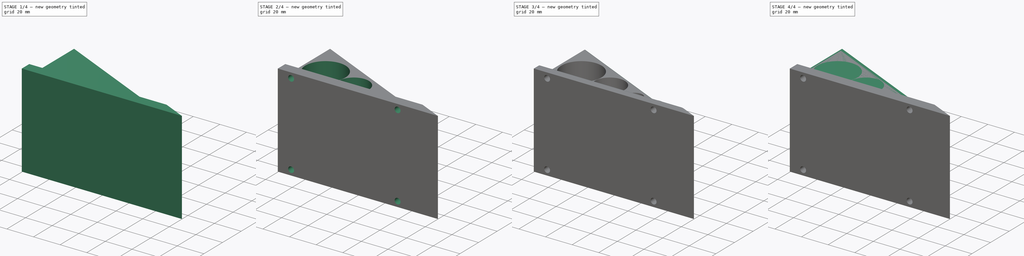
[diagram: build sequence overview — one tinted view per stage of 4, left to right]
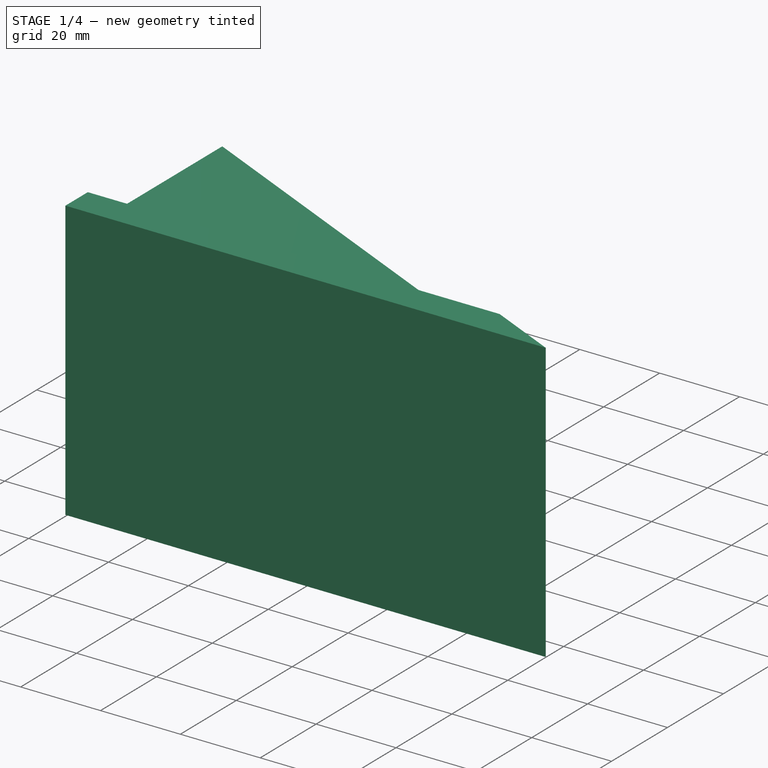
[diagram: stage 1 of 4 — iso view after this stage's code; geometry added in this stage tinted green]
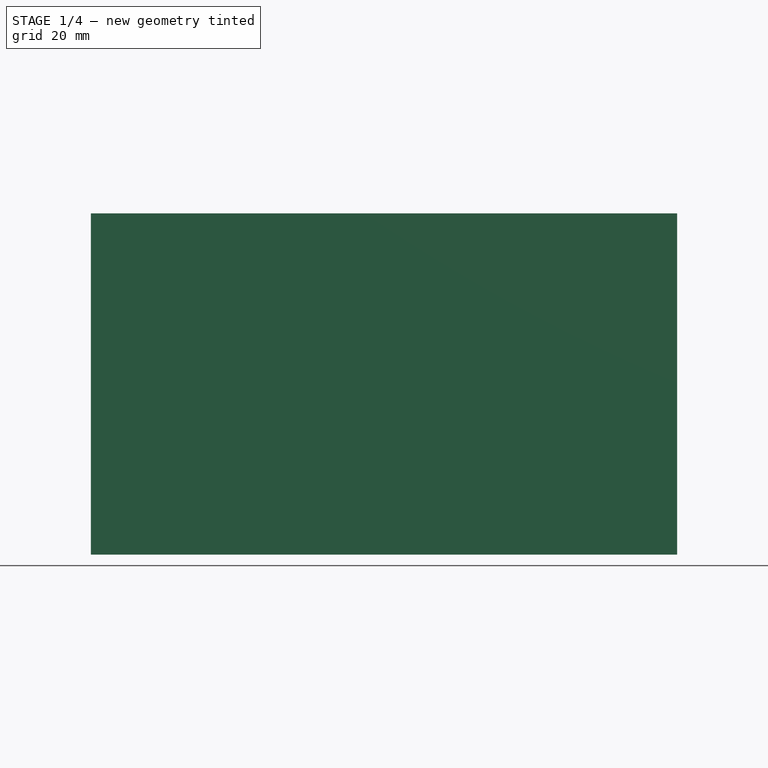
[diagram: stage 1 of 4 — front view after this stage's code; geometry added in this stage tinted green]
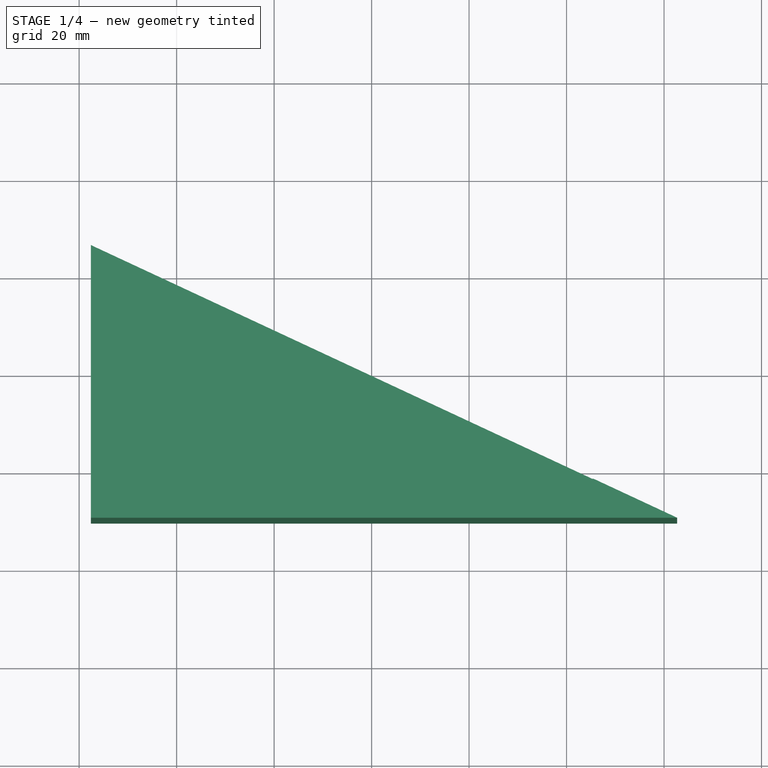
[diagram: stage 1 of 4 — top view after this stage's code; geometry added in this stage tinted green]
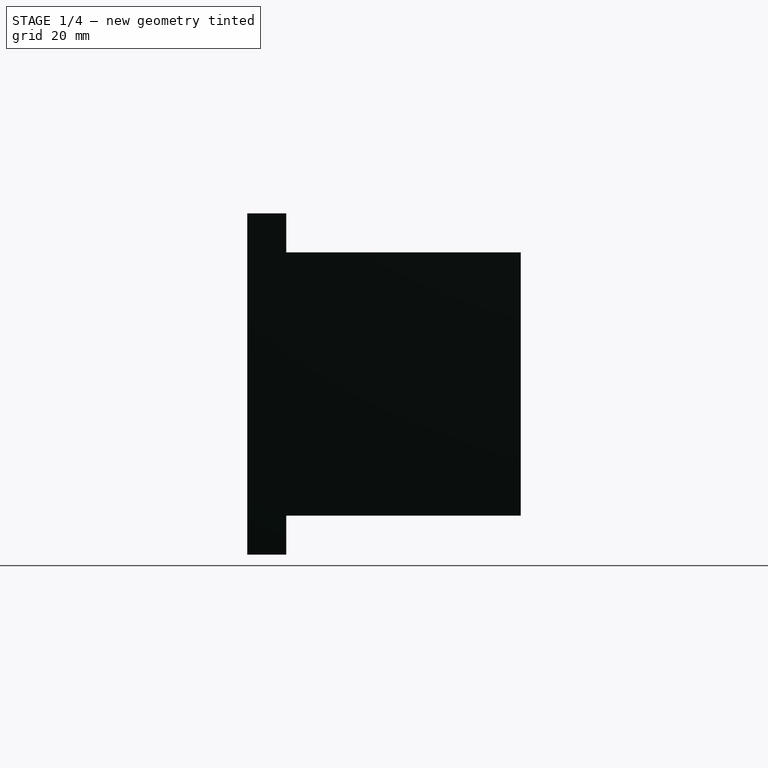
[diagram: stage 1 of 4 — right view after this stage's code; geometry added in this stage tinted green]
FCSTD DOCUMENT  (FreeCAD 0.16R6705 (Git))
Label: pippo
License: All rights reserved
LicenseURL: http://it.wikipedia.org/wiki/<copyright redacted>
objects: Sketcher::SketchObject×6, PartDesign::Pocket×5, PartDesign::Fillet×5, App::MeasureDistance×2, PartDesign::Pad×1
note: 23 computed .brp shape members not serialized (recipe doc carries the construction recipe); baked Part::Feature solids carry a one-line shape summary decoded from their .brp

FEATURE [Sketcher::SketchObject] Sketch
  sketch-geometry (3):
    g0: LineSegment StartX=-37.6085 StartY=25.834 StartZ=0 EndX=-37.6085 EndY=-30.2642 EndZ=0
    g1: LineSegment StartX=-37.6085 StartY=-30.2642 StartZ=0 EndX=82.6946 EndY=-30.2642 EndZ=0
    g2: LineSegment StartX=82.6946 StartY=-30.2642 StartZ=0 EndX=-37.6085 EndY=25.834 EndZ=0
  constraints (6):
    c: Coincident(g0,g1)
    c: Coincident(g1,g2)
    c: Coincident(g2,g0)
    c: Perpendicular(g1,g0)
    c: Parallel(g1,g-1)
    c: Angle(g2,g1) = 0.436332
FEATURE [PartDesign::Pad] Pad
  Length = 70
  Length2 = 100
  Midplane = true
  Sketch = -> Sketch
  Type = 0
FEATURE [Sketcher::SketchObject] Sketch001
  ExternalGeometry = -> [Pad]
  Placement = pos=(0,0,35) rot=(0,0,1;0rad)
  Support = -> Pad [Face5]
  sketch-geometry (3):
    g0: LineSegment StartX=-37.6085 StartY=25.834 StartZ=0 EndX=-37.6085 EndY=-22.2642 EndZ=0
    g1: LineSegment StartX=-37.6085 StartY=-22.2642 StartZ=0 EndX=65.5386 EndY=-22.2642 EndZ=0
    g2: LineSegment StartX=65.5386 StartY=-22.2642 StartZ=0 EndX=-37.6085 EndY=25.834 EndZ=0
  constraints (9):
    c: Coincident(g0,g1)
    c: Coincident(g1,g2)
    c: Coincident(g2,g0)
    c: Parallel(g1,g-3)
    c: Parallel(g0,g-4)
    c: PointOnObject(g1,g-5)
    c: PointOnObject(g0,g-4)
    c: DistanceY(g-4,g0) = 8
    c: PointOnObject(g0,g-5)
FEATURE [PartDesign::Pocket] Pocket
  Length = 8
  Sketch = -> Sketch001
  Type = 0
FEATURE [Sketcher::SketchObject] Sketch002
  ExternalGeometry = -> [Pocket]
  Placement = pos=(0,0,-35) rot=(1,0,0;3.14159rad)
  Support = -> Pocket [Face2]
  sketch-geometry (3):
    g0: LineSegment StartX=65.5386 StartY=22.2642 StartZ=0 EndX=-37.6085 EndY=22.2642 EndZ=0
    g1: LineSegment StartX=65.5386 StartY=22.2642 StartZ=0 EndX=-37.6085 EndY=-25.834 EndZ=0
    g2: LineSegment StartX=-37.6085 StartY=22.2642 StartZ=0 EndX=-37.6085 EndY=-25.834 EndZ=0
  constraints (6):
    c: Coincident(g2,g-5)
    c: Coincident(g1,g-4)
    c: Coincident(g-5,g0)
    c: Coincident(g-5,g1)
    c: Coincident(g2,g0)
    c: Coincident(g1,g2)
FEATURE [PartDesign::Pocket] Pocket001
  Length = 8
  Sketch = -> Sketch002
  Type = 0
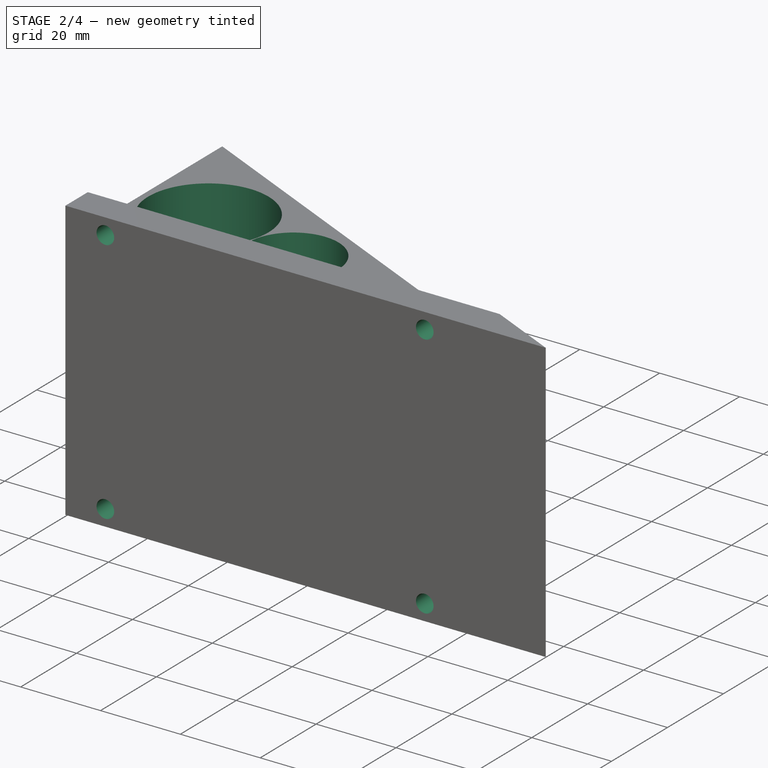
[diagram: stage 2 of 4 — iso view after this stage's code; geometry added in this stage tinted green]
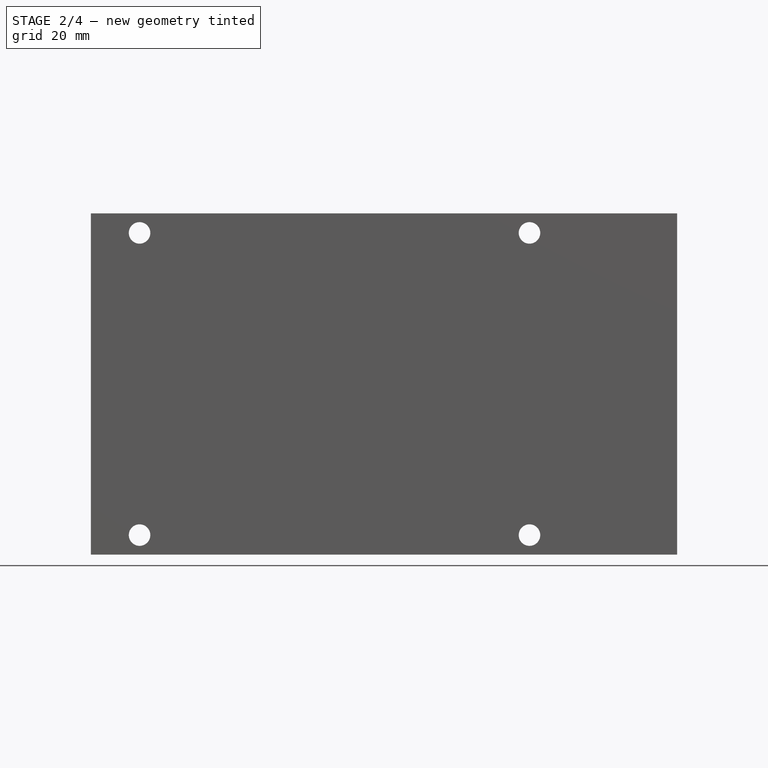
[diagram: stage 2 of 4 — front view after this stage's code; geometry added in this stage tinted green]
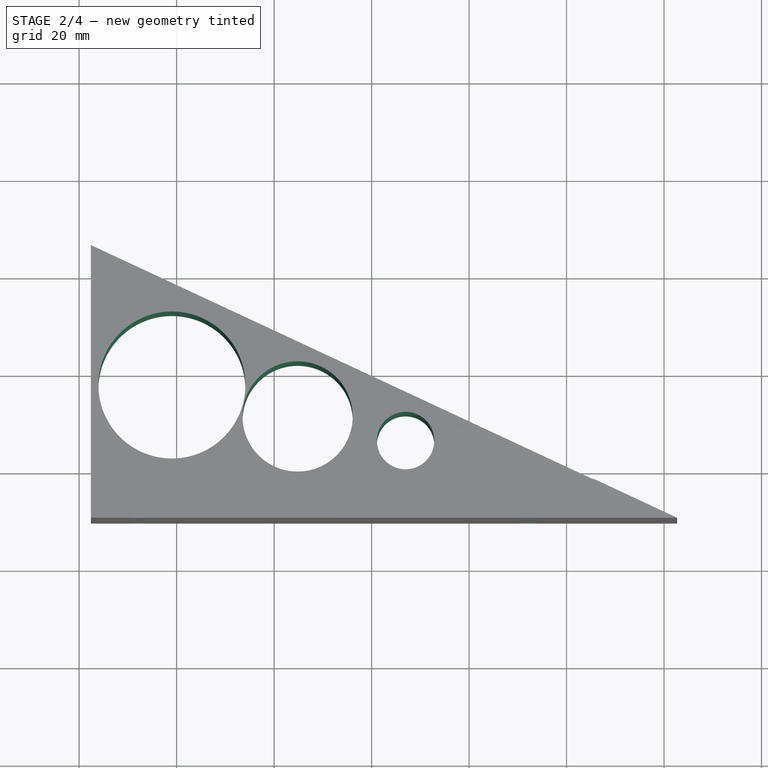
[diagram: stage 2 of 4 — top view after this stage's code; geometry added in this stage tinted green]
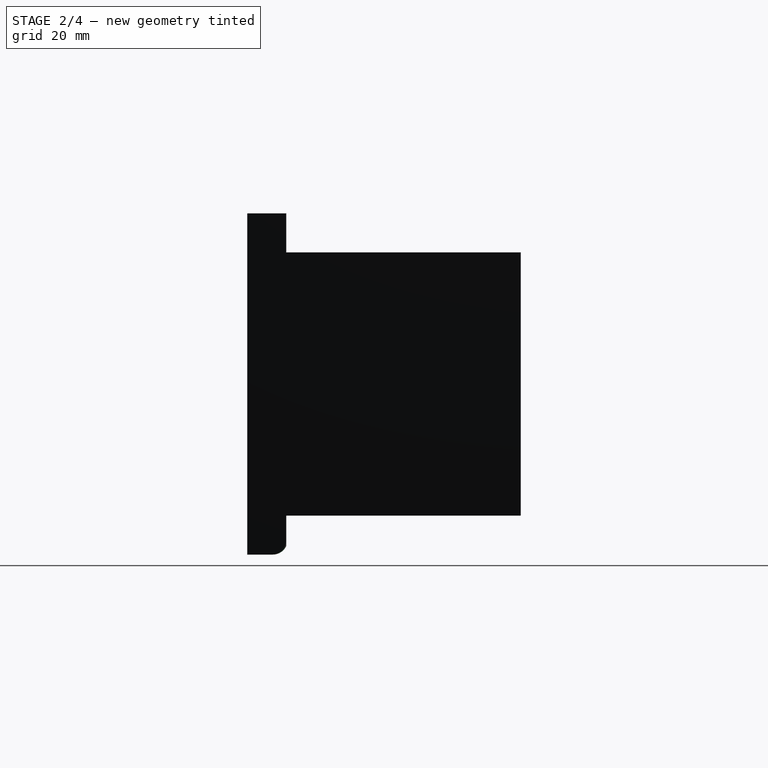
[diagram: stage 2 of 4 — right view after this stage's code; geometry added in this stage tinted green]
FEATURE [Sketcher::SketchObject] Sketch003
  ExternalGeometry = -> [Pocket001]
  Placement = pos=(0,-22.2642,0) rot=(0,0.707107,0.707107;3.14159rad)
  Support = -> Pocket001 [Face5]
  sketch-geometry (8):
    g0: Circle CenterX=-52.3915 CenterY=31 CenterZ=0 NormalX=0 NormalY=0 NormalZ=1 Radius=2.20775
    g1: Circle CenterX=27.6085 CenterY=31 CenterZ=0 NormalX=0 NormalY=0 NormalZ=1 Radius=2.20775
    g2: Circle CenterX=-52.3915 CenterY=-31 CenterZ=0 NormalX=0 NormalY=0 NormalZ=1 Radius=2.20775
    g3: Circle CenterX=27.6085 CenterY=-31 CenterZ=0 NormalX=0 NormalY=0 NormalZ=1 Radius=2.20775
    g4: LineSegment [constr] StartX=-52.3915 StartY=31 StartZ=0 EndX=27.6085 EndY=31 EndZ=0
    g5: LineSegment [constr] StartX=27.6085 StartY=31 StartZ=0 EndX=27.6085 EndY=-31 EndZ=0
    g6: LineSegment [constr] StartX=27.6085 StartY=-31 StartZ=0 EndX=-52.3915 EndY=-31 EndZ=0
    g7: LineSegment [constr] StartX=-52.3915 StartY=-31 StartZ=0 EndX=-52.3915 EndY=31 EndZ=0
  constraints (21):
    c: Equal(g0,g1)
    c: Equal(g1,g3)
    c: Equal(g3,g2)
    c: DistanceX(g1,g-3) = 10
    c: DistanceX(g3,g-4) = 10
    c: DistanceX(g2,g-4) = 90
    c: DistanceX(g0,g-3) = 90
    c: Coincident(g4,g5)
    c: Coincident(g5,g6)
    c: Coincident(g6,g7)
    c: Coincident(g7,g4)
    c: Horizontal(g4)
    c: Horizontal(g6)
    c: Vertical(g5)
    c: Vertical(g7)
    c: Coincident(g4,g0)
    c: Coincident(g2,g6)
    c: Coincident(g4,g1)
    c: Coincident(g5,g3)
    c: DistanceY(g1,g-3) = 4
    c: DistanceY(g-4,g3) = 4
FEATURE [PartDesign::Pocket] Pocket002
  Length = 5
  Sketch = -> Sketch003
  Type = 1
FEATURE [App::MeasureDistance] Distance001  label="Distance: 29,0761 mm"
  Distance = 29.0761
  P1 = (-33.8137,-19.6292,17)
  P2 = (-33.4099,9.44407,17)
FEATURE [Sketcher::SketchObject] Sketch005
  Placement = pos=(0,0,27) rot=(0,0,1;0rad)
  Support = -> Pocket002 [Face6]
  sketch-geometry (3):
    g0: Circle CenterX=-20.9703 CenterY=-2.89183 CenterZ=0 NormalX=0 NormalY=0 NormalZ=1 Radius=15.0813
    g1: Circle CenterX=4.81649 CenterY=-9.33852 CenterZ=0 NormalX=0 NormalY=0 NormalZ=1 Radius=11.3083
    g2: Circle CenterX=26.9667 CenterY=-14.2975 CenterZ=0 NormalX=0 NormalY=0 NormalZ=1 Radius=5.88617
FEATURE [PartDesign::Pocket] Pocket004
  Length = 5
  Sketch = -> Sketch005
  Type = 1
FEATURE [PartDesign::Fillet] Fillet
  Base = -> Pocket004 [Edge11]
  Radius = 3
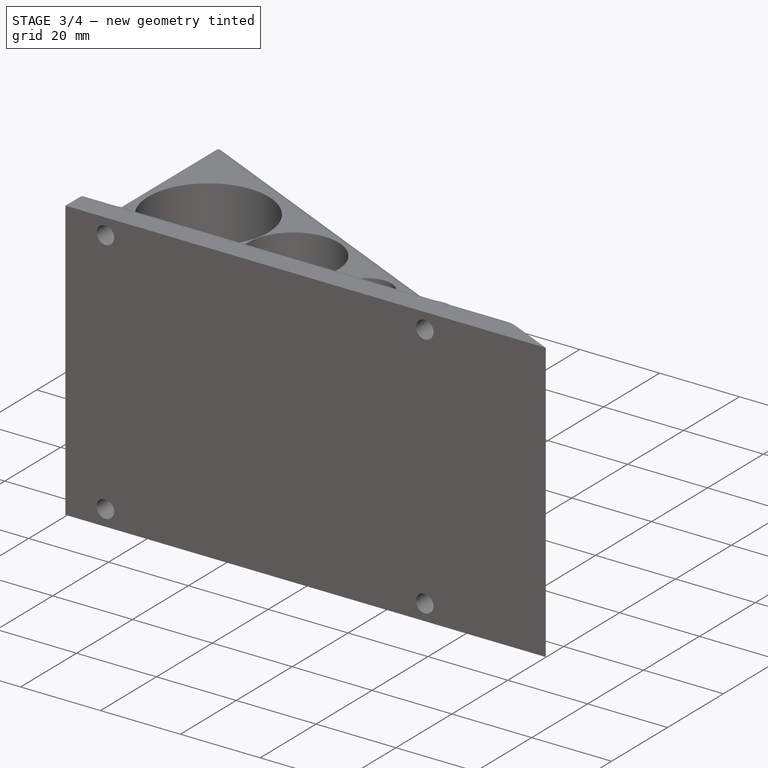
[diagram: stage 3 of 4 — iso view after this stage's code; geometry added in this stage tinted green]
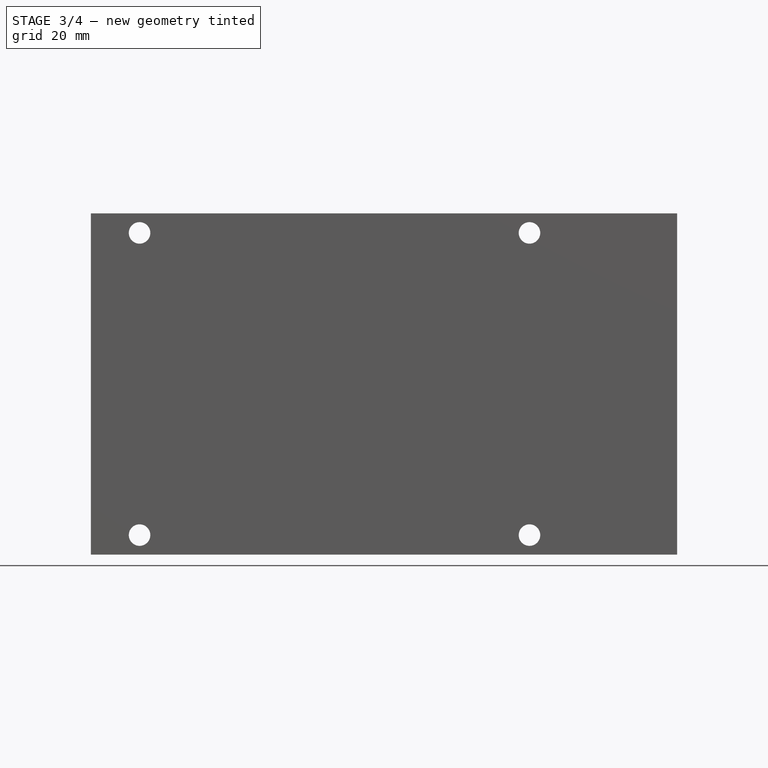
[diagram: stage 3 of 4 — front view after this stage's code; geometry added in this stage tinted green]
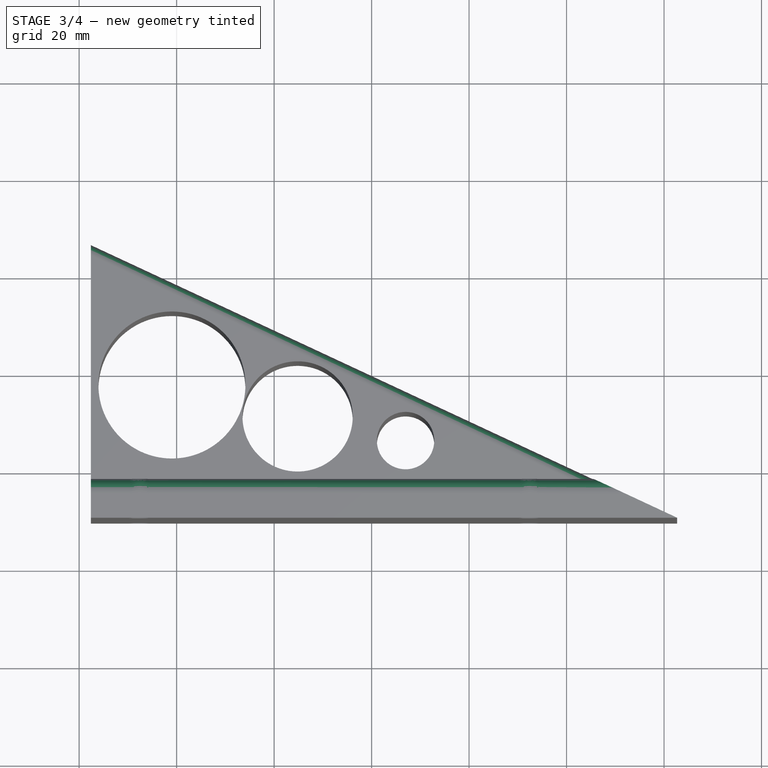
[diagram: stage 3 of 4 — top view after this stage's code; geometry added in this stage tinted green]
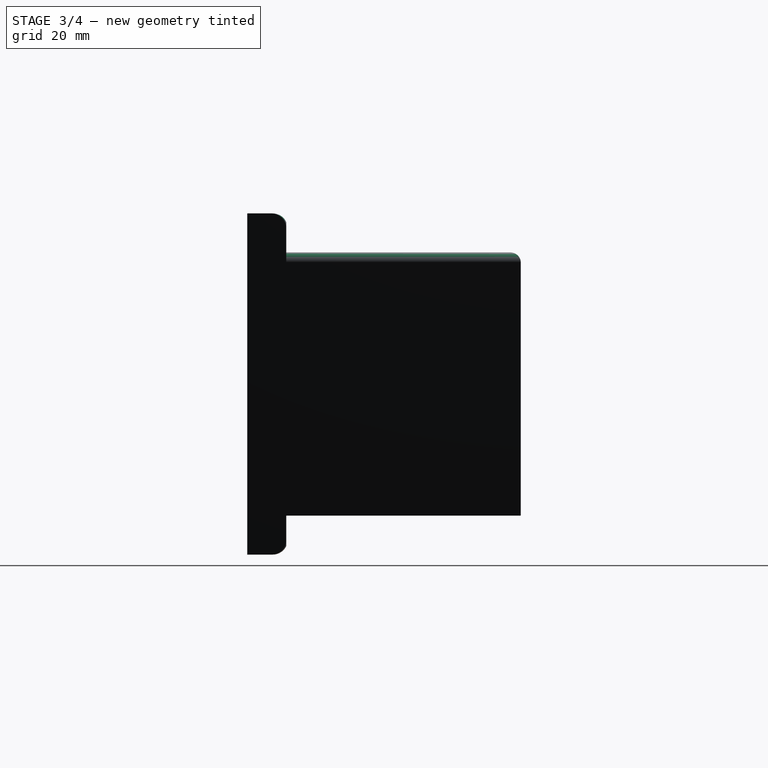
[diagram: stage 3 of 4 — right view after this stage's code; geometry added in this stage tinted green]
FEATURE [PartDesign::Fillet] Fillet001
  Base = -> Fillet [Edge34]
  Radius = 3
FEATURE [PartDesign::Fillet] Fillet002
  Base = -> Fillet001 [Edge40]
  Radius = 2
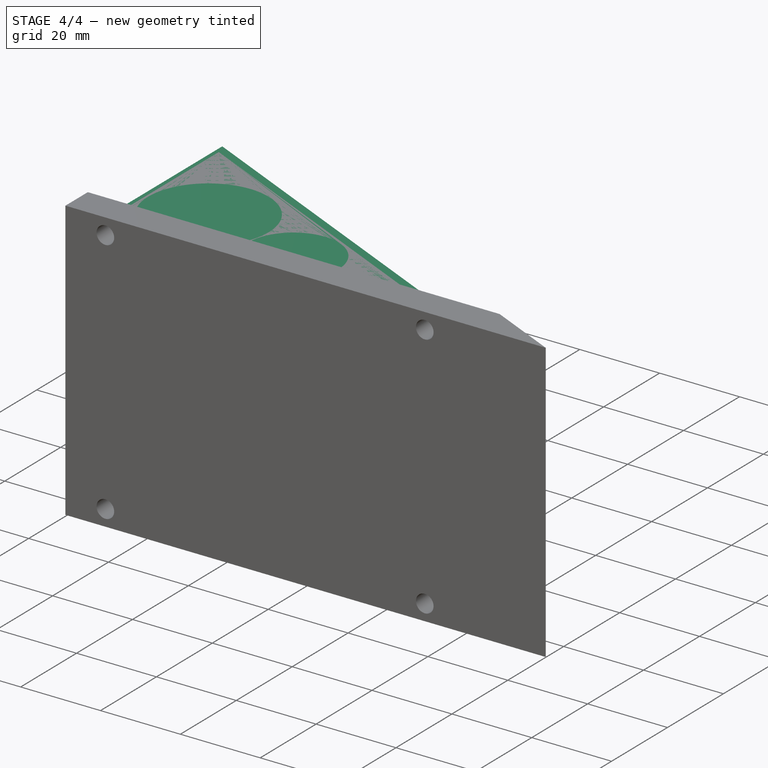
[diagram: stage 4 of 4 — iso view after this stage's code; geometry added in this stage tinted green]
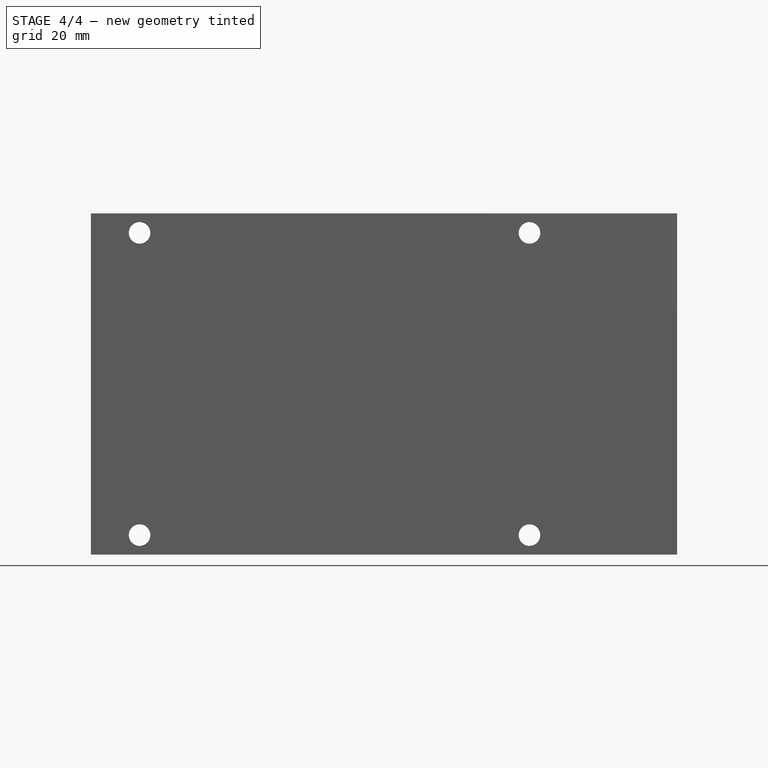
[diagram: stage 4 of 4 — front view after this stage's code; geometry added in this stage tinted green]
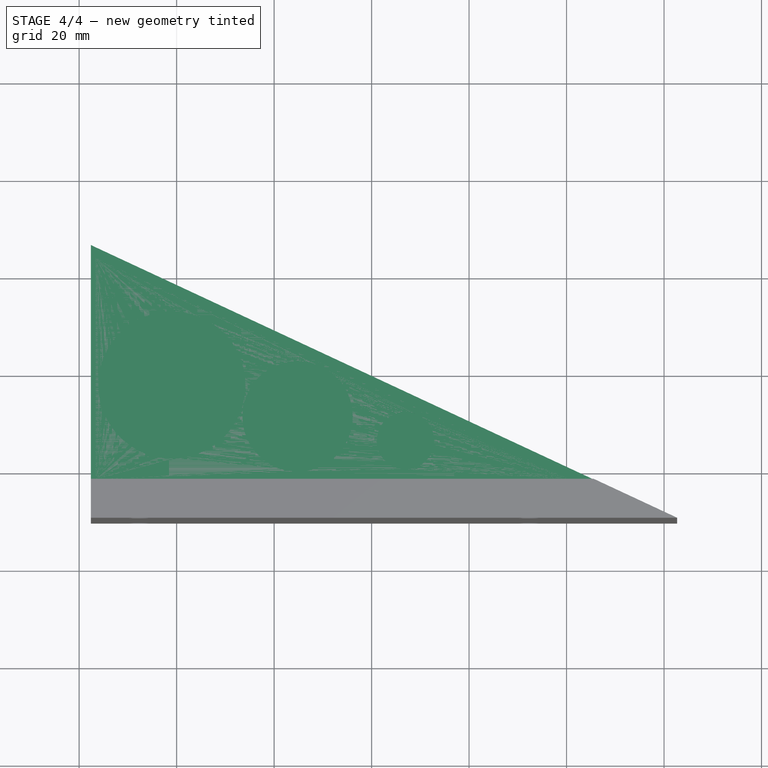
[diagram: stage 4 of 4 — top view after this stage's code; geometry added in this stage tinted green]
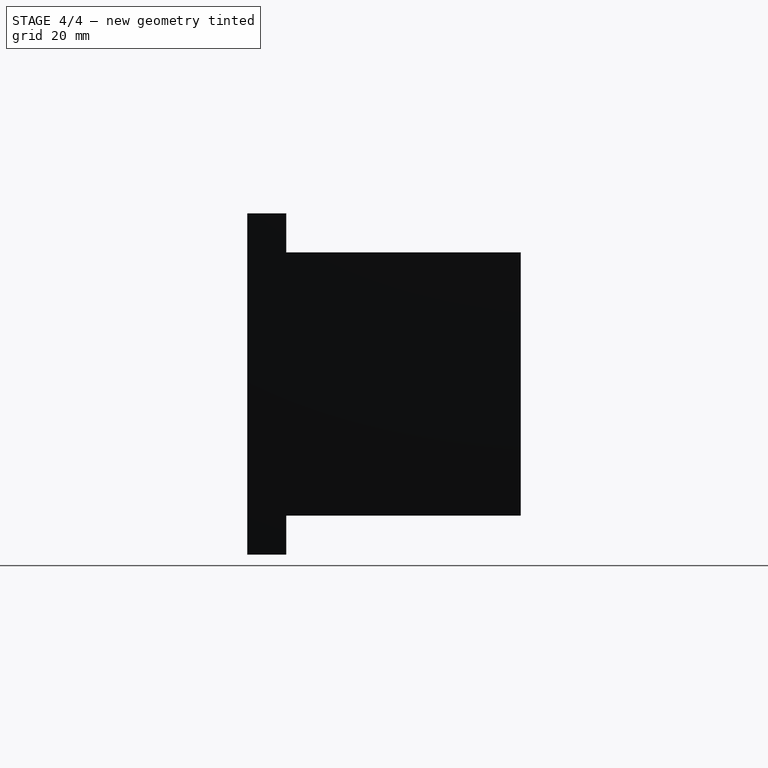
[diagram: stage 4 of 4 — right view after this stage's code; geometry added in this stage tinted green]
FEATURE [App::MeasureDistance] Distance  label="Distance: 34,0007 mm"
  Distance = 34.0007
  P1 = (-35.8327,25.006,17)
  P2 = (-35.6308,24.9118,-17)
FEATURE [Sketcher::SketchObject] Sketch004
  Placement = pos=(0,-30.2642,0) rot=(1,0,0;1.5708rad)
  Support = -> Pocket002 [Face3]
  sketch-geometry (4):
    g0: LineSegment StartX=-29.5739 StartY=13.0424 StartZ=0 EndX=-0.298696 EndY=13.0424 EndZ=0
    g1: LineSegment StartX=-0.298696 StartY=13.0424 StartZ=0 EndX=-0.298696 EndY=-13.0424 EndZ=0
    g2: LineSegment StartX=-0.298696 StartY=-13.0424 StartZ=0 EndX=-29.5739 EndY=-13.0424 EndZ=0
    g3: LineSegment StartX=-29.5739 StartY=-13.0424 StartZ=0 EndX=-29.5739 EndY=13.0424 EndZ=0
  constraints (9):
    c: Coincident(g0,g1)
    c: Coincident(g1,g2)
    c: Coincident(g2,g3)
    c: Coincident(g3,g0)
    c: Horizontal(g0)
    c: Horizontal(g2)
    c: Vertical(g1)
    c: Vertical(g3)
    c: Symmetric(g0,g2,g-1)
FEATURE [PartDesign::Pocket] Pocket003
  Length = 29
  Sketch = -> Sketch004
  Type = 0
FEATURE [PartDesign::Fillet] Fillet003
  Base = -> Fillet002 [Edge28]
  Radius = 2
FEATURE [PartDesign::Fillet] Fillet004
  Base = -> Fillet003 [Edge1]
  Radius = 3
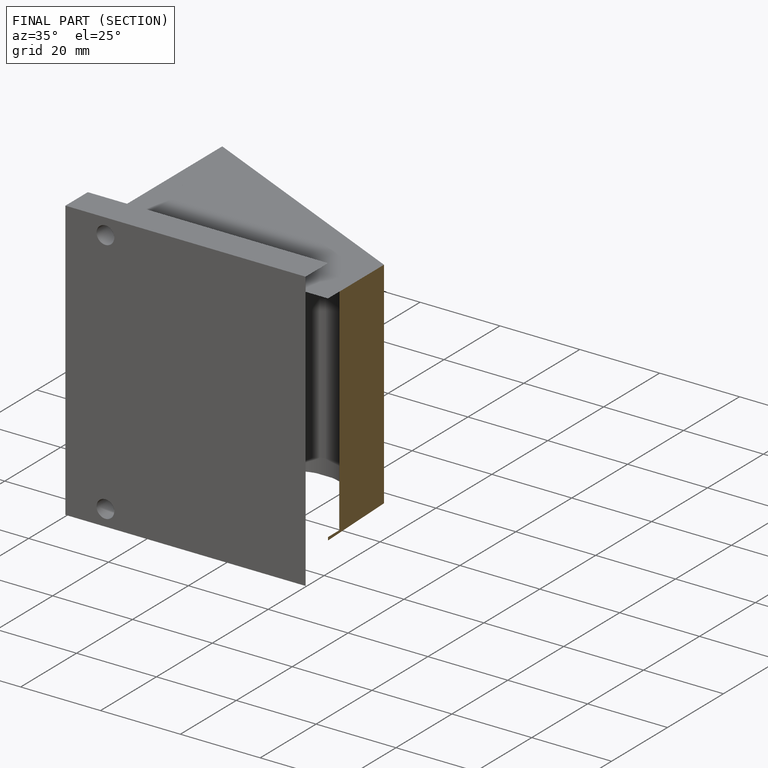
[diagram: finished part — half-section view (interior)]
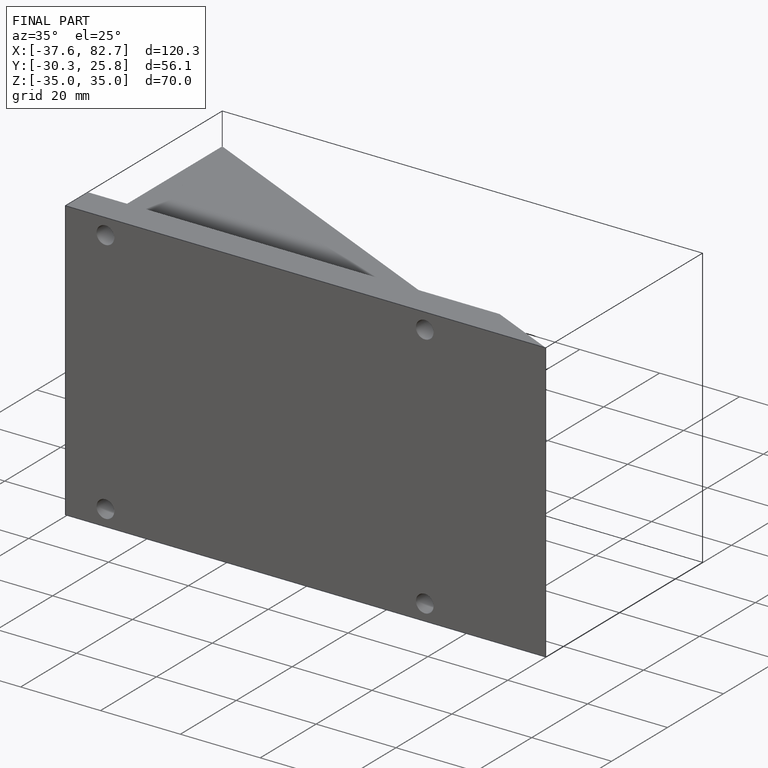
[diagram: finished part — iso view with bounding-box wireframe]
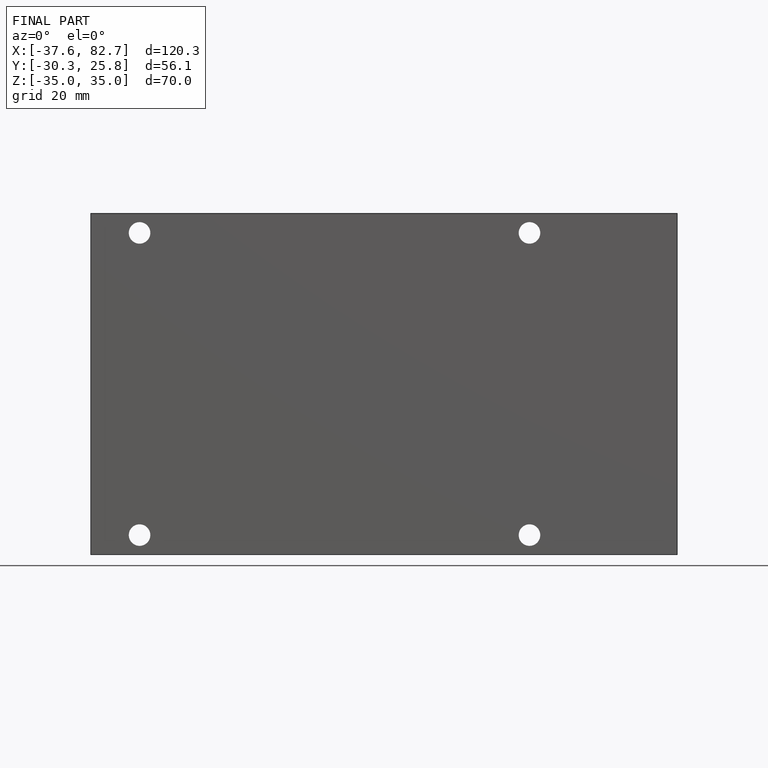
[diagram: finished part — front view with bounding-box wireframe]
